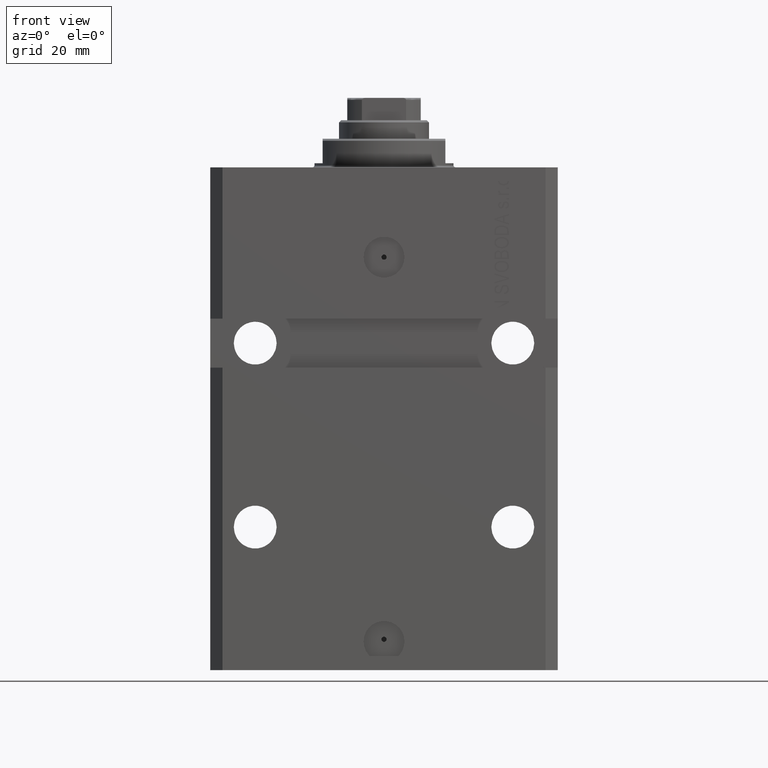
[diagram: clean part render]
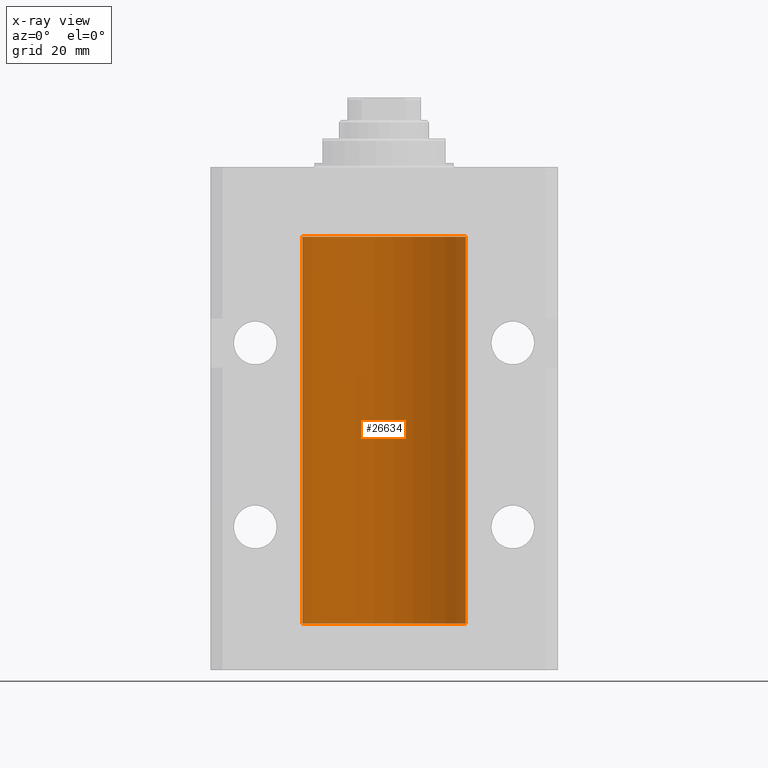
[diagram: x-ray — body ghosted, one internal face saturated and labeled with its STEP entity id]
A machine part, front view, then the same camera in x-ray: the body is ghosted and one INTERNAL B-rep face — a face not visible from any outside direction — is saturated and labeled: STEP entity #26634.
In plain terms, the highlighted cylindrical surface (partial cylindrical patch) has radius 20 mm, axis along (0, 0, 1).
Its self-contained STEP definition (entity closure, byte-faithful):
#748 = VERTEX_POINT ( 'NONE', #44507 ) ;
#1365 = CARTESIAN_POINT ( 'NONE',  ( 0.000000000000000000, 0.000000000000000000, -111.5999999999999943 ) ) ;
#1795 = CARTESIAN_POINT ( 'NONE',  ( -19.99769349528941120, 0.3253804398728645242, -24.55855820727680339 ) ) ;
#1845 = CARTESIAN_POINT ( 'NONE',  ( -19.99999999999999289, 0.08259581631025748882, -108.3749999999999716 ) ) ;
#2005 = EDGE_CURVE ( 'NONE', #39740, #42489, #22936, .T. ) ;
#2080 = CARTESIAN_POINT ( 'NONE',  ( -19.99023018003212471, 0.6250578794725484277, -109.1628480970496895 ) ) ;
#2705 = DIRECTION ( 'NONE',  ( -0.000000000000000000, -0.000000000000000000, 1.000000000000000000 ) ) ;
#2941 = CARTESIAN_POINT ( 'NONE',  ( -20.00000000000010303, 3.580159278407742946E-13, -24.62500000000332889 ) ) ;
#4315 = DIRECTION ( 'NONE',  ( 1.000000000000000000, 0.000000000000000000, 0.000000000000000000 ) ) ;
#5479 = CARTESIAN_POINT ( 'NONE',  ( -20.00000000000000000, 2.449293598294706513E-15, -111.5999999999999943 ) ) ;
#5495 = CARTESIAN_POINT ( 'NONE',  ( -19.99947377218718358, 0.1636439183262759223, -108.3912636400465459 ) ) ;
#5725 = CARTESIAN_POINT ( 'NONE',  ( -20.00000000000010303, 3.580159290815452135E-13, -109.6250000000033253 ) ) ;
#5909 = CARTESIAN_POINT ( 'NONE',  ( -20.00000000000000000, 0.1631688615953320320, -24.62499999999985434 ) ) ;
#6615 = CARTESIAN_POINT ( 'NONE',  ( 20.00000000000000000, 0.000000000000000000, -17.00000000000000000 ) ) ;
#7115 = LINE ( 'NONE', #47735, #41529 ) ;
#9087 = CARTESIAN_POINT ( 'NONE',  ( 20.00000000000000000, 0.000000000000000000, -111.5999999999999943 ) ) ;
#9615 = CARTESIAN_POINT ( 'NONE',  ( -20.00000000000000000, -1.494965790691426527E-14, -108.3750000000000000 ) ) ;
#9794 = CARTESIAN_POINT ( 'NONE',  ( -19.99256581701871482, 0.5573276956902001311, -23.67348565770948809 ) ) ;
#11437 = EDGE_CURVE ( 'NONE', #748, #23949, #42285, .T. ) ;
#11723 = EDGE_CURVE ( 'NONE', #37657, #45550, #38827, .T. ) ;
#12397 = ORIENTED_EDGE ( 'NONE', *, *, #38745, .F. ) ;
#12558 = DIRECTION ( 'NONE',  ( 1.000000000000000000, 0.000000000000000000, 0.000000000000000000 ) ) ;
#13521 = CARTESIAN_POINT ( 'NONE',  ( -19.99253506710754991, 0.5587120480776772702, -109.3251162083024894 ) ) ;
#13575 = AXIS2_PLACEMENT_3D ( 'NONE', #15035, #19406, #4315 ) ;
#14738 = DIRECTION ( 'NONE',  ( 1.000000000000000000, 0.000000000000000000, 0.000000000000000000 ) ) ;
#15035 = CARTESIAN_POINT ( 'NONE',  ( 0.000000000000000000, 0.000000000000000000, -111.5999999999999943 ) ) ;
#15555 = CARTESIAN_POINT ( 'NONE',  ( -20.00000000000010303, 3.580159290815452135E-13, -109.6250000000033253 ) ) ;
#15889 = ORIENTED_EDGE ( 'NONE', *, *, #19009, .F. ) ;
#16218 = VECTOR ( 'NONE', #48035, 1000.000000000000000 ) ;
#16406 = CARTESIAN_POINT ( 'NONE',  ( -19.99999999999999645, 0.08259581631026780002, -23.37500000000000000 ) ) ;
#16637 = CARTESIAN_POINT ( 'NONE',  ( -20.00000000000010303, 3.580159278407742946E-13, -24.62500000000332889 ) ) ;
#16858 = VECTOR ( 'NONE', #2705, 1000.000000000000000 ) ;
#16956 = ORIENTED_EDGE ( 'NONE', *, *, #25235, .T. ) ;
#17915 = ORIENTED_EDGE ( 'NONE', *, *, #42452, .F. ) ;
#18844 = LINE ( 'NONE', #33675, #16218 ) ;
#19009 = EDGE_CURVE ( 'NONE', #25207, #22872, #42818, .T. ) ;
#19406 = DIRECTION ( 'NONE',  ( -0.000000000000000000, -0.000000000000000000, 1.000000000000000000 ) ) ;
#20286 = CARTESIAN_POINT ( 'NONE',  ( -19.99023380173166231, 0.6249420416828462832, -23.83670793056396064 ) ) ;
#20338 = CARTESIAN_POINT ( 'NONE',  ( -20.00000000000000355, 0.1631688615953337806, -109.6249999999998721 ) ) ;
#20743 = CARTESIAN_POINT ( 'NONE',  ( -19.99947377218718714, 0.1636439183262877461, -23.39126364004656011 ) ) ;
#21291 = CARTESIAN_POINT ( 'NONE',  ( 0.000000000000000000, 0.000000000000000000, -17.00000000000000000 ) ) ;
#22872 = VERTEX_POINT ( 'NONE', #5479 ) ;
#22936 = CIRCLE ( 'NONE', #36110, 20.00000000000000000 ) ;
#23949 = VERTEX_POINT ( 'NONE', #15555 ) ;
#24087 = DIRECTION ( 'NONE',  ( -0.000000000000000000, -0.000000000000000000, 1.000000000000000000 ) ) ;
#24459 = CARTESIAN_POINT ( 'NONE',  ( -19.99638934703457593, 0.3843678041337614260, -108.5004636297810094 ) ) ;
#24554 = CARTESIAN_POINT ( 'NONE',  ( -20.00000000000000000, 2.449293598294706513E-15, -17.00000000000000000 ) ) ;
#24958 = DIRECTION ( 'NONE',  ( 0.000000000000000000, 0.000000000000000000, 1.000000000000000000 ) ) ;
#25207 = VERTEX_POINT ( 'NONE', #9087 ) ;
#25235 = EDGE_CURVE ( 'NONE', #25207, #39740, #7115, .T. ) ;
#25622 = ORIENTED_EDGE ( 'NONE', *, *, #11437, .T. ) ;
#26225 = FACE_OUTER_BOUND ( 'NONE', #44943, .T. ) ;
#26634 = ADVANCED_FACE ( 'NONE', ( #26225 ), #37157, .F. ) ;
#27735 = CARTESIAN_POINT ( 'NONE',  ( -20.00000000000000000, 2.449293598294706513E-15, -111.5999999999999943 ) ) ;
#31542 = EDGE_CURVE ( 'NONE', #37657, #42489, #43811, .T. ) ;
#31707 = CARTESIAN_POINT ( 'NONE',  ( -19.99023018003212471, 0.6250578794725500931, -24.16284809704970371 ) ) ;
#32418 = DIRECTION ( 'NONE',  ( -0.000000000000000000, -0.000000000000000000, 1.000000000000000000 ) ) ;
#33675 = CARTESIAN_POINT ( 'NONE',  ( -20.00000000000000000, 2.449293598294706513E-15, -111.5999999999999943 ) ) ;
#34953 = VECTOR ( 'NONE', #24087, 1000.000000000000000 ) ;
#35125 = CARTESIAN_POINT ( 'NONE',  ( -19.99253506710754991, 0.5587120480776751608, -24.32511620830248589 ) ) ;
#36110 = AXIS2_PLACEMENT_3D ( 'NONE', #21291, #24958, #14738 ) ;
#36118 = CARTESIAN_POINT ( 'NONE',  ( -19.99256581701871838, 0.5573276956901952461, -108.6734856577094916 ) ) ;
#36987 = CARTESIAN_POINT ( 'NONE',  ( -20.00000000000000000, 2.449293598294706513E-15, -111.5999999999999943 ) ) ;
#37157 = CYLINDRICAL_SURFACE ( 'NONE', #13575, 20.00000000000000000 ) ;
#37657 = VERTEX_POINT ( 'NONE', #46586 ) ;
#38573 = DIRECTION ( 'NONE',  ( 0.000000000000000000, 0.000000000000000000, 1.000000000000000000 ) ) ;
#38745 = EDGE_CURVE ( 'NONE', #748, #45550, #18844, .T. ) ;
#38827 = B_SPLINE_CURVE_WITH_KNOTS ( 'NONE', 3,
 ( #39477, #16406, #20743, #46542, #39239, #9794, #20286, #31707, #35125, #1795, #5909, #16637 ),
 .UNSPECIFIED., .F., .F.,
 ( 4, 2, 2, 2, 2, 4 ),
 ( 5.848927291235706941E-19, 0.0002442693137305304075, 0.0004885386274610601645, 0.0009770772549221123059, 0.001465615882383164339, 0.001954154509844215938 ),
 .UNSPECIFIED. ) ;
#39239 = CARTESIAN_POINT ( 'NONE',  ( -19.99638934703457593, 0.3843678041337688644, -23.50046362978100944 ) ) ;
#39477 = CARTESIAN_POINT ( 'NONE',  ( -20.00000000000000000, -2.867584836844214272E-15, -23.37500000000000000 ) ) ;
#39740 = VERTEX_POINT ( 'NONE', #6615 ) ;
#41529 = VECTOR ( 'NONE', #32418, 1000.000000000000000 ) ;
#42285 = B_SPLINE_CURVE_WITH_KNOTS ( 'NONE', 3,
 ( #9615, #1845, #5495, #46840, #24459, #36118, #46361, #2080, #13521, #42478, #20338, #5725 ),
 .UNSPECIFIED., .F., .F.,
 ( 4, 2, 2, 2, 2, 4 ),
 ( 1.555867690894744095E-18, 0.0002442693137305176681, 0.0004885386274610337099, 0.0009770772549220949586, 0.001465615882383156099, 0.001954154509844217673 ),
 .UNSPECIFIED. ) ;
#42452 = EDGE_CURVE ( 'NONE', #22872, #23949, #46218, .T. ) ;
#42478 = CARTESIAN_POINT ( 'NONE',  ( -19.99769349528941476, 0.3253804398728720182, -109.5585582072768318 ) ) ;
#42489 = VERTEX_POINT ( 'NONE', #24554 ) ;
#42818 = CIRCLE ( 'NONE', #46701, 20.00000000000000000 ) ;
#43378 = ORIENTED_EDGE ( 'NONE', *, *, #2005, .T. ) ;
#43763 = ORIENTED_EDGE ( 'NONE', *, *, #11723, .T. ) ;
#43811 = LINE ( 'NONE', #36987, #16858 ) ;
#44507 = CARTESIAN_POINT ( 'NONE',  ( -20.00000000000000000, -1.494965790691426527E-14, -108.3750000000000000 ) ) ;
#44943 = EDGE_LOOP ( 'NONE', ( #17915, #15889, #16956, #43378, #47198, #43763, #12397, #25622 ) ) ;
#45550 = VERTEX_POINT ( 'NONE', #2941 ) ;
#46218 = LINE ( 'NONE', #27735, #34953 ) ;
#46361 = CARTESIAN_POINT ( 'NONE',  ( -19.99023380173165876, 0.6249420416828411762, -108.8367079305639322 ) ) ;
#46542 = CARTESIAN_POINT ( 'NONE',  ( -19.99766197842594906, 0.3150331617867667688, -23.45402070102505476 ) ) ;
#46586 = CARTESIAN_POINT ( 'NONE',  ( -20.00000000000000000, -2.867584836844214272E-15, -23.37500000000000000 ) ) ;
#46701 = AXIS2_PLACEMENT_3D ( 'NONE', #1365, #38573, #12558 ) ;
#46840 = CARTESIAN_POINT ( 'NONE',  ( -19.99766197842594906, 0.3150331617867563327, -108.4540207010250299 ) ) ;
#47198 = ORIENTED_EDGE ( 'NONE', *, *, #31542, .F. ) ;
#47735 = CARTESIAN_POINT ( 'NONE',  ( 20.00000000000000000, 0.000000000000000000, -111.5999999999999943 ) ) ;
#48035 = DIRECTION ( 'NONE',  ( -0.000000000000000000, -0.000000000000000000, 1.000000000000000000 ) ) ;